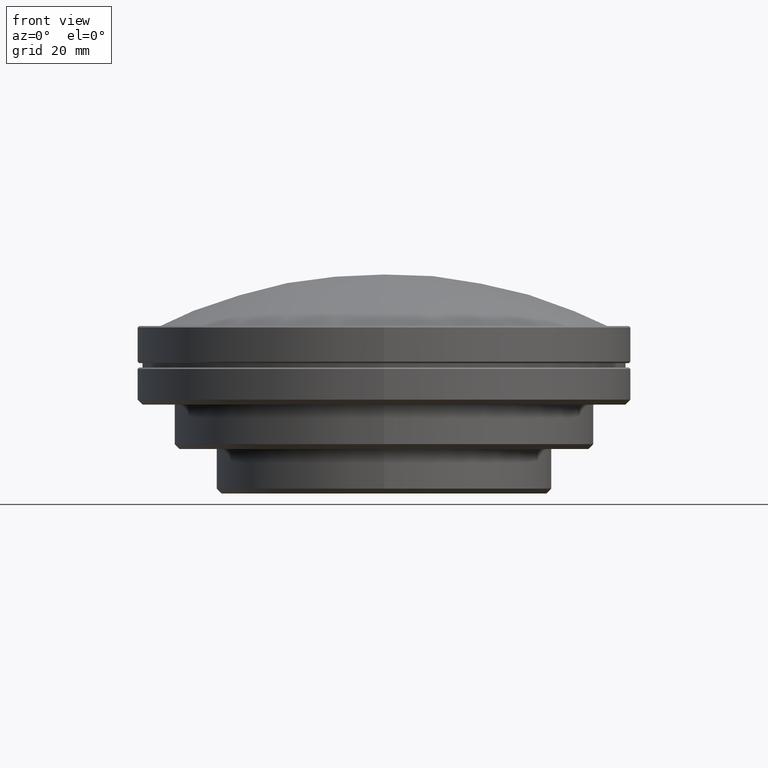
[diagram: clean part render]
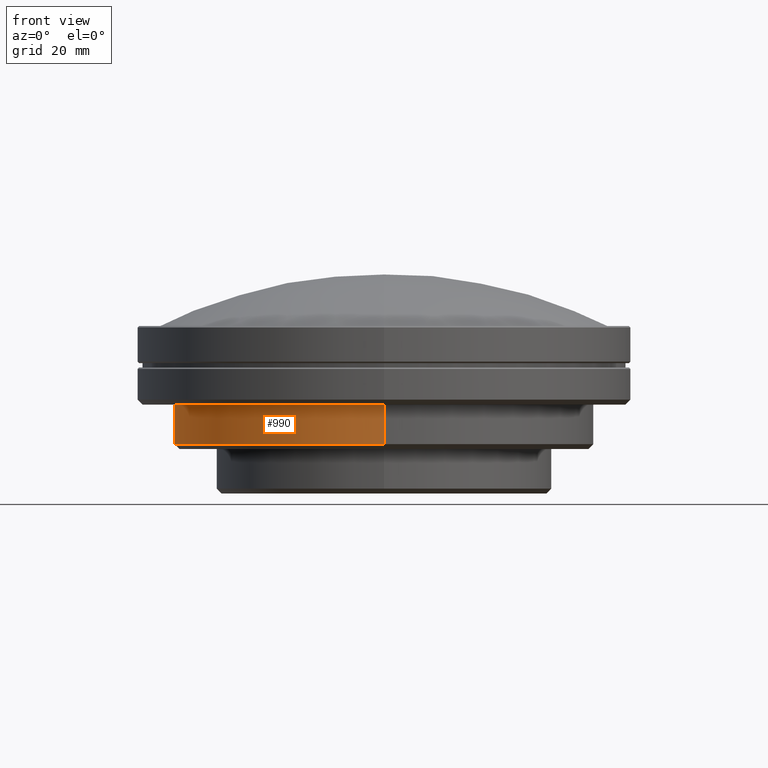
[diagram: same view with one face highlighted and labeled with its STEP entity id]
A machine part, front view. The second image highlights one B-rep face of the part: STEP entity #990.
In plain terms, the highlighted cylindrical surface (partial cylindrical patch) has radius 42.5 mm, axis along (0, 0, -1).
Its self-contained STEP definition (entity closure, byte-faithful):
#12 = DIRECTION ( 'NONE',  ( 0.000000000000000000, 0.000000000000000000, 1.000000000000000000 ) ) ;
#89 = CARTESIAN_POINT ( 'NONE',  ( 0.000000000000000000, 0.000000000000000000, 26.99999999981999821 ) ) ;
#118 = DIRECTION ( 'NONE',  ( 0.000000000000000000, 1.000000000000000000, 0.000000000000000000 ) ) ;
#159 = CARTESIAN_POINT ( 'NONE',  ( 0.000000000000000000, -42.50000000000000000, 19.00000000000000000 ) ) ;
#160 = AXIS2_PLACEMENT_3D ( 'NONE', #748, #12, #118 ) ;
#197 = DIRECTION ( 'NONE',  ( 0.000000000000000000, 0.000000000000000000, -1.000000000000000000 ) ) ;
#214 = ORIENTED_EDGE ( 'NONE', *, *, #983, .F. ) ;
#215 = CARTESIAN_POINT ( 'NONE',  ( 0.000000000000000000, -42.50000000000000000, 26.99999999981999821 ) ) ;
#252 = CARTESIAN_POINT ( 'NONE',  ( 0.000000000000000000, 0.000000000000000000, 56.14223884068000103 ) ) ;
#281 = EDGE_CURVE ( 'NONE', #1014, #980, #753, .T. ) ;
#311 = ORIENTED_EDGE ( 'NONE', *, *, #637, .T. ) ;
#318 = DIRECTION ( 'NONE',  ( 0.000000000000000000, 0.000000000000000000, 1.000000000000000000 ) ) ;
#333 = LINE ( 'NONE', #575, #933 ) ;
#339 = LINE ( 'NONE', #159, #961 ) ;
#359 = AXIS2_PLACEMENT_3D ( 'NONE', #252, #197, #550 ) ;
#437 = FACE_OUTER_BOUND ( 'NONE', #478, .T. ) ;
#465 = CIRCLE ( 'NONE', #699, 42.50000000000000000 ) ;
#478 = EDGE_LOOP ( 'NONE', ( #1010, #311, #214, #583 ) ) ;
#515 = DIRECTION ( 'NONE',  ( 0.000000000000000000, 0.000000000000000000, 1.000000000000000000 ) ) ;
#519 = EDGE_CURVE ( 'NONE', #1014, #851, #333, .T. ) ;
#550 = DIRECTION ( 'NONE',  ( 0.000000000000000000, -1.000000000000000000, 0.000000000000000000 ) ) ;
#575 = CARTESIAN_POINT ( 'NONE',  ( 0.000000000000000000, 42.50000000000000000, 19.00000000000000000 ) ) ;
#583 = ORIENTED_EDGE ( 'NONE', *, *, #519, .F. ) ;
#637 = EDGE_CURVE ( 'NONE', #980, #833, #339, .T. ) ;
#639 = CARTESIAN_POINT ( 'NONE',  ( 0.000000000000000000, 42.50000000000000000, 19.00000000000000000 ) ) ;
#699 = AXIS2_PLACEMENT_3D ( 'NONE', #89, #515, #872 ) ;
#748 = CARTESIAN_POINT ( 'NONE',  ( 0.000000000000000000, 0.000000000000000000, 19.00000000000000000 ) ) ;
#753 = CIRCLE ( 'NONE', #160, 42.50000000000000000 ) ;
#823 = CARTESIAN_POINT ( 'NONE',  ( 0.000000000000000000, 42.50000000000000000, 26.99999999981999821 ) ) ;
#833 = VERTEX_POINT ( 'NONE', #215 ) ;
#851 = VERTEX_POINT ( 'NONE', #823 ) ;
#872 = DIRECTION ( 'NONE',  ( 0.000000000000000000, 1.000000000000000000, 0.000000000000000000 ) ) ;
#894 = CARTESIAN_POINT ( 'NONE',  ( 0.000000000000000000, -42.50000000000000000, 19.00000000000000000 ) ) ;
#933 = VECTOR ( 'NONE', #954, 1000.000000000000000 ) ;
#954 = DIRECTION ( 'NONE',  ( 0.000000000000000000, 0.000000000000000000, 1.000000000000000000 ) ) ;
#961 = VECTOR ( 'NONE', #318, 1000.000000000000000 ) ;
#976 = CYLINDRICAL_SURFACE ( 'NONE', #359, 42.50000000000000000 ) ;
#980 = VERTEX_POINT ( 'NONE', #894 ) ;
#983 = EDGE_CURVE ( 'NONE', #851, #833, #465, .T. ) ;
#990 = ADVANCED_FACE ( 'NONE', ( #437 ), #976, .T. ) ;
#1010 = ORIENTED_EDGE ( 'NONE', *, *, #281, .T. ) ;
#1014 = VERTEX_POINT ( 'NONE', #639 ) ;